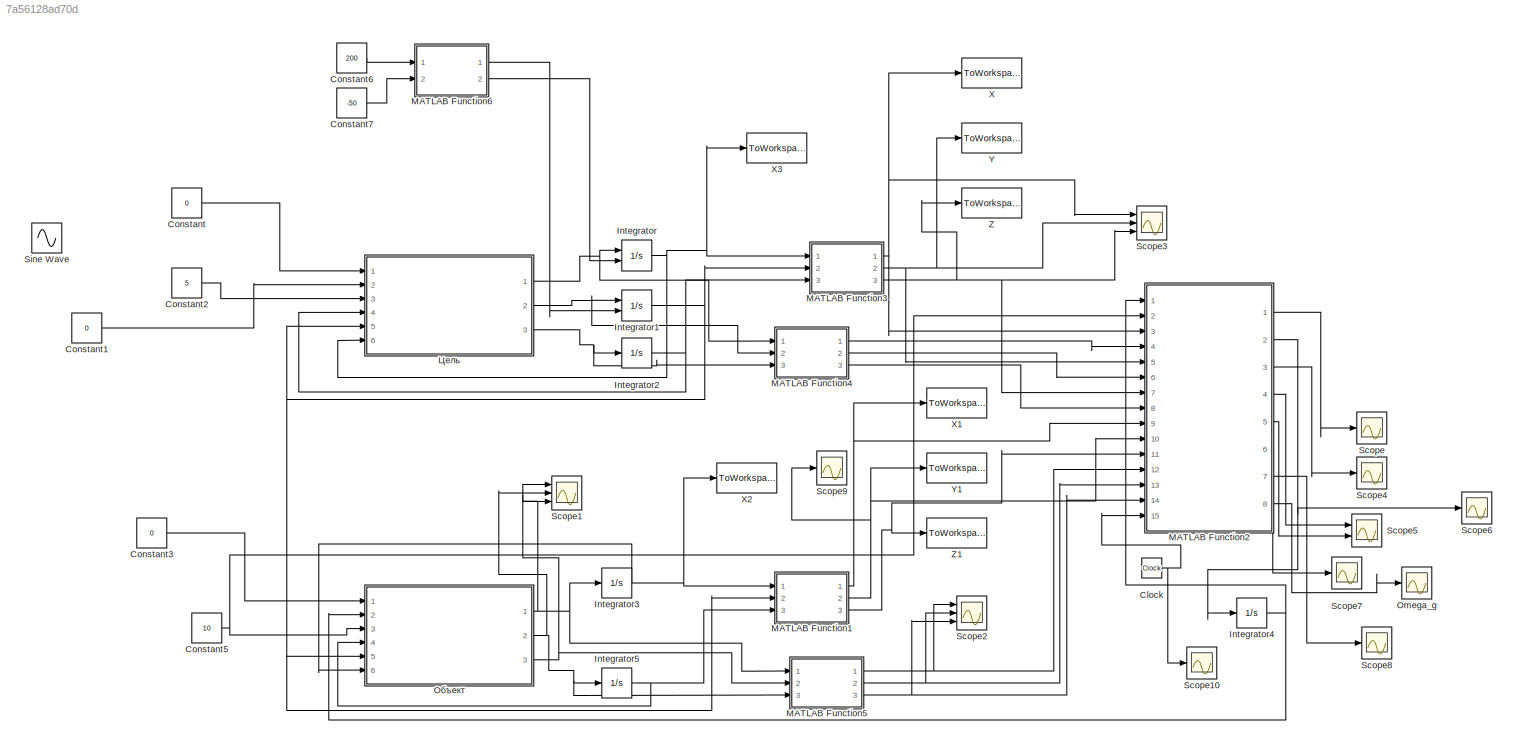
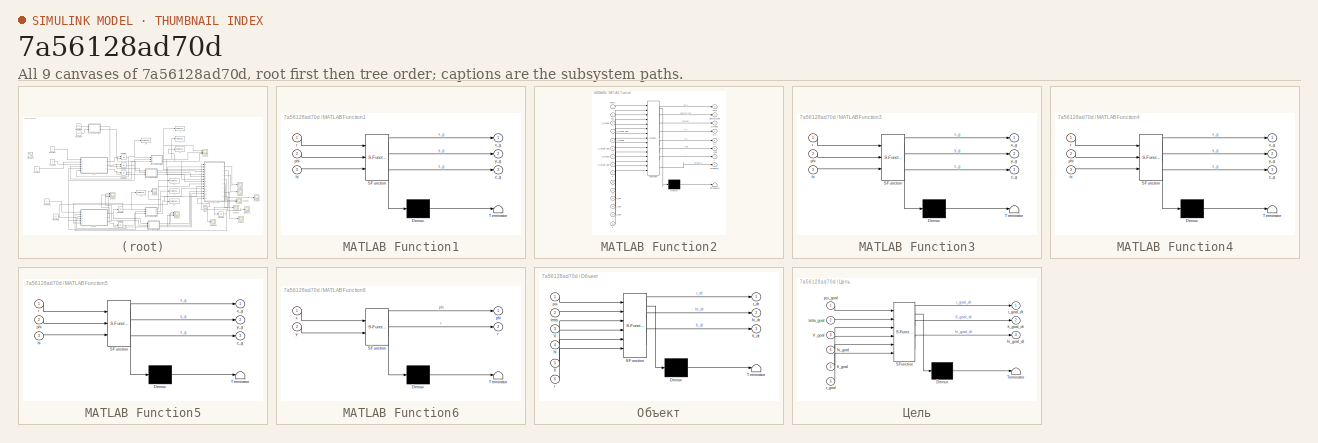
[diagram: thumbnail index - all 9 canvases of the model, root first then tree order]
MODEL slx_7a56128ad70d
KIND model
CONFIG AbsTol = auto
CONFIG EnableMultiTasking = off
CONFIG FixedStep = 0.001
CONFIG MaxStep = auto
CONFIG MinStep = auto
CONFIG RelTol = 1e-3
CONFIG SampleTimeConstraint = Unconstrained
CONFIG Solver = ode4
CONFIG SolverName = ode4
CONFIG StartTime = 0.0
CONFIG StopTime = 120
BLOCK [Clock] Clock
BLOCK [Constant] Constant
  Value = 0
BLOCK [Constant] Constant1
  Value = 0
BLOCK [Constant] Constant2
  Value = 5
BLOCK [Constant] Constant3
  Value = 0
BLOCK [Constant] Constant5
  Value = 10
BLOCK [Constant] Constant6
  Value = 200
BLOCK [Constant] Constant7
  Value = -50
BLOCK [Integrator] Integrator
  InitialCondition = 2000
  InitialConditionSource = external
  Ports = [2, 1]
BLOCK [Integrator] Integrator1
  InitialCondition = pi/4
  InitialConditionSource = external
  Ports = [2, 1]
BLOCK [Integrator] Integrator2
  InitialCondition = 0.0001
  Ports = [1, 1]
BLOCK [Integrator] Integrator3
  InitialCondition = 1
  Ports = [1, 1]
BLOCK [Integrator] Integrator4
  InitialCondition = pi/6
  Ports = [1, 1]
BLOCK [Integrator] Integrator5
  InitialCondition = 0.001
  Ports = [1, 1]
BLOCK [SubSystem] MATLAB Function1
  ErrorFcn = Stateflow.Translate.translate
  PermitHierarchicalResolution = ExplicitOnly
  Ports = [3, 3]
  RequestExecContextInheritance = off
  SFBlockType = MATLAB Function
  TreatAsAtomicUnit = on
BLOCK [Demux] MATLAB Function1/ Demux 
  Outputs = 1
  Ports = [1, 1]
BLOCK [S-Function] MATLAB Function1/ SFunction 
  EnableBusSupport = on
  FunctionName = sf_sfun
  PortCounts = [3 4]
  Ports = [3, 4]
  SFcnIsStateOwnerBlock = off
  SFunctionDeploymentMode = off
  Tag = Stateflow S-Function 1
BLOCK [Terminator] MATLAB Function1/ Terminator 
BLOCK [Inport] MATLAB Function1/hi
  Port = 3
BLOCK [Inport] MATLAB Function1/phi
  Port = 2
BLOCK [Inport] MATLAB Function1/r
BLOCK [Outport] MATLAB Function1/x_g
BLOCK [Outport] MATLAB Function1/y_g
  Port = 2
BLOCK [Outport] MATLAB Function1/z_g
  Port = 3
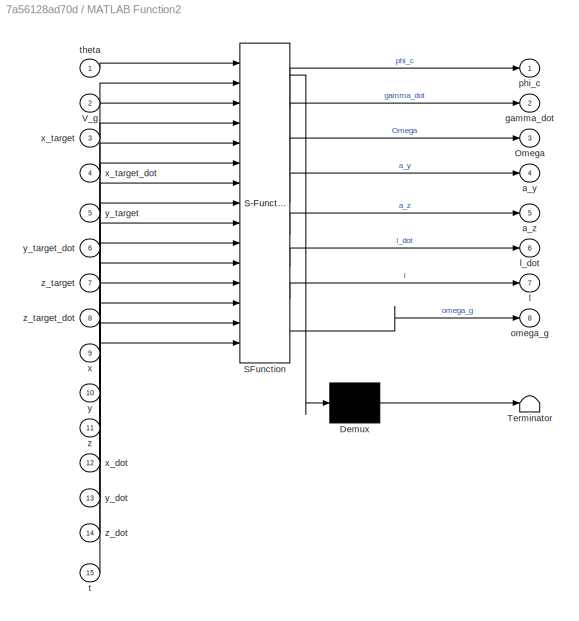
BLOCK [SubSystem] MATLAB Function2
  ErrorFcn = Stateflow.Translate.translate
  PermitHierarchicalResolution = ExplicitOnly
  Ports = [15, 8]
  RequestExecContextInheritance = off
  SFBlockType = MATLAB Function
  TreatAsAtomicUnit = on
BLOCK [Demux] MATLAB Function2/ Demux 
  Outputs = 1
  Ports = [1, 1]
BLOCK [S-Function] MATLAB Function2/ SFunction 
  EnableBusSupport = on
  FunctionName = sf_sfun
  PortCounts = [15 9]
  Ports = [15, 9]
  SFcnIsStateOwnerBlock = off
  SFunctionDeploymentMode = off
  Tag = Stateflow S-Function 6
BLOCK [Terminator] MATLAB Function2/ Terminator 
BLOCK [Outport] MATLAB Function2/Omega
  Port = 3
BLOCK [Inport] MATLAB Function2/V_g
  Port = 2
BLOCK [Outport] MATLAB Function2/a_y
  Port = 4
BLOCK [Outport] MATLAB Function2/a_z
  Port = 5
BLOCK [Outport] MATLAB Function2/gamma_dot
  Port = 2
BLOCK [Outport] MATLAB Function2/l
  Port = 7
BLOCK [Outport] MATLAB Function2/l_dot
  Port = 6
BLOCK [Outport] MATLAB Function2/omega_g
  Port = 8
BLOCK [Outport] MATLAB Function2/phi_c
BLOCK [Inport] MATLAB Function2/t
  Port = 15
BLOCK [Inport] MATLAB Function2/theta
BLOCK [Inport] MATLAB Function2/x
  Port = 9
BLOCK [Inport] MATLAB Function2/x_dot
  Port = 12
BLOCK [Inport] MATLAB Function2/x_target
  Port = 3
BLOCK [Inport] MATLAB Function2/x_target_dot
  Port = 4
BLOCK [Inport] MATLAB Function2/y
  Port = 10
BLOCK [Inport] MATLAB Function2/y_dot
  Port = 13
BLOCK [Inport] MATLAB Function2/y_target
  Port = 5
BLOCK [Inport] MATLAB Function2/y_target_dot
  Port = 6
BLOCK [Inport] MATLAB Function2/z
  Port = 11
BLOCK [Inport] MATLAB Function2/z_dot
  Port = 14
BLOCK [Inport] MATLAB Function2/z_target
  Port = 7
BLOCK [Inport] MATLAB Function2/z_target_dot
  Port = 8
BLOCK [SubSystem] MATLAB Function3
  ErrorFcn = Stateflow.Translate.translate
  PermitHierarchicalResolution = ExplicitOnly
  Ports = [3, 3]
  RequestExecContextInheritance = off
  SFBlockType = MATLAB Function
  TreatAsAtomicUnit = on
BLOCK [Demux] MATLAB Function3/ Demux 
  Outputs = 1
  Ports = [1, 1]
BLOCK [S-Function] MATLAB Function3/ SFunction 
  EnableBusSupport = on
  FunctionName = sf_sfun
  PortCounts = [3 4]
  Ports = [3, 4]
  SFcnIsStateOwnerBlock = off
  SFunctionDeploymentMode = off
  Tag = Stateflow S-Function 4
BLOCK [Terminator] MATLAB Function3/ Terminator 
BLOCK [Inport] MATLAB Function3/hi
  Port = 3
BLOCK [Inport] MATLAB Function3/phi
  Port = 2
BLOCK [Inport] MATLAB Function3/r
BLOCK [Outport] MATLAB Function3/x_g
BLOCK [Outport] MATLAB Function3/y_g
  Port = 2
BLOCK [Outport] MATLAB Function3/z_g
  Port = 3
BLOCK [SubSystem] MATLAB Function4
  ErrorFcn = Stateflow.Translate.translate
  PermitHierarchicalResolution = ExplicitOnly
  Ports = [3, 3]
  RequestExecContextInheritance = off
  SFBlockType = MATLAB Function
  TreatAsAtomicUnit = on
BLOCK [Demux] MATLAB Function4/ Demux 
  Outputs = 1
  Ports = [1, 1]
BLOCK [S-Function] MATLAB Function4/ SFunction 
  EnableBusSupport = on
  FunctionName = sf_sfun
  PortCounts = [3 4]
  Ports = [3, 4]
  SFcnIsStateOwnerBlock = off
  SFunctionDeploymentMode = off
  Tag = Stateflow S-Function 7
BLOCK [Terminator] MATLAB Function4/ Terminator 
BLOCK [Inport] MATLAB Function4/hi
  Port = 3
BLOCK [Inport] MATLAB Function4/phi
  Port = 2
BLOCK [Inport] MATLAB Function4/r
BLOCK [Outport] MATLAB Function4/x_g
BLOCK [Outport] MATLAB Function4/y_g
  Port = 2
BLOCK [Outport] MATLAB Function4/z_g
  Port = 3
BLOCK [SubSystem] MATLAB Function5
  ErrorFcn = Stateflow.Translate.translate
  PermitHierarchicalResolution = ExplicitOnly
  Ports = [3, 3]
  RequestExecContextInheritance = off
  SFBlockType = MATLAB Function
  TreatAsAtomicUnit = on
BLOCK [Demux] MATLAB Function5/ Demux 
  Outputs = 1
  Ports = [1, 1]
BLOCK [S-Function] MATLAB Function5/ SFunction 
  EnableBusSupport = on
  FunctionName = sf_sfun
  PortCounts = [3 4]
  Ports = [3, 4]
  SFcnIsStateOwnerBlock = off
  SFunctionDeploymentMode = off
  Tag = Stateflow S-Function 8
BLOCK [Terminator] MATLAB Function5/ Terminator 
BLOCK [Inport] MATLAB Function5/hi
  Port = 3
BLOCK [Inport] MATLAB Function5/phi
  Port = 2
BLOCK [Inport] MATLAB Function5/r
BLOCK [Outport] MATLAB Function5/x_g
BLOCK [Outport] MATLAB Function5/y_g
  Port = 2
BLOCK [Outport] MATLAB Function5/z_g
  Port = 3
BLOCK [SubSystem] MATLAB Function6
  ErrorFcn = Stateflow.Translate.translate
  PermitHierarchicalResolution = ExplicitOnly
  Ports = [2, 2]
  RequestExecContextInheritance = off
  SFBlockType = MATLAB Function
  TreatAsAtomicUnit = on
BLOCK [Demux] MATLAB Function6/ Demux 
  Outputs = 1
  Ports = [1, 1]
BLOCK [S-Function] MATLAB Function6/ SFunction 
  EnableBusSupport = on
  FunctionName = sf_sfun
  PortCounts = [2 3]
  Ports = [2, 3]
  SFcnIsStateOwnerBlock = off
  SFunctionDeploymentMode = off
  Tag = Stateflow S-Function 5
BLOCK [Terminator] MATLAB Function6/ Terminator 
BLOCK [Outport] MATLAB Function6/phi
BLOCK [Outport] MATLAB Function6/r
  Port = 2
BLOCK [Inport] MATLAB Function6/x
BLOCK [Inport] MATLAB Function6/y
  Port = 2
BLOCK [Scope] Omega_g
  Floating = off
  NumInputPorts = 1
  Ports = [1]
  ScopeSpecificationString = Simulink.scopes.TimeScopeBlockCfg('CurrentConfiguration', extmgr.ConfigurationSet(extmgr.Configuration('Core','General UI',true),extmgr.Configuration('Core','Source UI',true),extmgr.Configuration('Sources','WiredSimulink',true,'DataLoggingVariableName','ScopeData2'),extmgr.Configuration('Visuals','Time Domain',true,'SerializedDisplays',{struct('MinYLimReal','-0.00155','MaxYLimReal','0.00178','YLab...<+1488ch>
BLOCK [Scope] Scope
  Floating = off
  NumInputPorts = 1
  Ports = [1]
  ScopeSpecificationString = Simulink.scopes.TimeScopeBlockCfg('CurrentConfiguration', extmgr.ConfigurationSet(extmgr.Configuration('Core','General UI',true),extmgr.Configuration('Core','Source UI',true),extmgr.Configuration('Sources','WiredSimulink',true),extmgr.Configuration('Visuals','Time Domain',true,'SerializedDisplays',{struct('MinYLimReal','-0.125','MaxYLimReal','1.125','YLabelReal','','MinYLimMag','0.00000','MaxYLimM...<+1360ch>
BLOCK [Scope] Scope1
  Floating = off
  NumInputPorts = 3
  Ports = [3]
  ScopeSpecificationString = Simulink.scopes.TimeScopeBlockCfg('CurrentConfiguration', extmgr.ConfigurationSet(extmgr.Configuration('Core','General UI',true),extmgr.Configuration('Core','Source UI',true),extmgr.Configuration('Sources','WiredSimulink',true,'DataLoggingVariableName','ScopeData7'),extmgr.Configuration('Visuals','Time Domain',true,'SerializedDisplays',{struct('MinYLimReal','-123.57353','MaxYLimReal','335.70557','...<+1459ch>
BLOCK [Scope] Scope10
  Floating = off
  NumInputPorts = 1
  Ports = [1]
  ScopeSpecificationString = Simulink.scopes.TimeScopeBlockCfg('CurrentConfiguration', extmgr.ConfigurationSet(extmgr.Configuration('Core','General UI',true),extmgr.Configuration('Core','Source UI',true),extmgr.Configuration('Sources','WiredSimulink',true,'DataLoggingVariableName','ScopeData1'),extmgr.Configuration('Visuals','Time Domain',true,'SerializedDisplays',{struct('MinYLimReal','-0.0318','MaxYLimReal','0.44768','YLabe...<+1407ch>
BLOCK [Scope] Scope2
  Floating = off
  NumInputPorts = 3
  Ports = [3]
  ScopeSpecificationString = Simulink.scopes.TimeScopeBlockCfg('CurrentConfiguration', extmgr.ConfigurationSet(extmgr.Configuration('Core','General UI',true),extmgr.Configuration('Core','Source UI',true),extmgr.Configuration('Sources','WiredSimulink',true,'DataLoggingVariableName','ScopeData8'),extmgr.Configuration('Visuals','Time Domain',true,'SerializedDisplays',{struct('MinYLimReal','-1.50931','MaxYLimReal','1.77948','YLab...<+1470ch>
BLOCK [Scope] Scope3
  Floating = off
  NumInputPorts = 3
  Ports = [3]
  ScopeSpecificationString = Simulink.scopes.TimeScopeBlockCfg('CurrentConfiguration', extmgr.ConfigurationSet(extmgr.Configuration('Core','General UI',true),extmgr.Configuration('Core','Source UI',true),extmgr.Configuration('Sources','WiredSimulink',true,'DataLoggingVariableName','ScopeData1'),extmgr.Configuration('Visuals','Time Domain',true,'SerializedDisplays',{struct('MinYLimReal','-84.375','MaxYLimReal','259.375','YLabe...<+1452ch>
BLOCK [Scope] Scope4
  Floating = off
  NumInputPorts = 1
  Ports = [1]
  ScopeSpecificationString = Simulink.scopes.TimeScopeBlockCfg('CurrentConfiguration', extmgr.ConfigurationSet(extmgr.Configuration('Core','General UI',true),extmgr.Configuration('Core','Source UI',true),extmgr.Configuration('Sources','WiredSimulink',true,'DataLoggingVariableName','ScopeData2'),extmgr.Configuration('Visuals','Time Domain',true,'SerializedDisplays',{struct('MinYLimReal','-0.00155','MaxYLimReal','0.00178','YLab...<+1482ch>
BLOCK [Scope] Scope5
  Floating = off
  NumInputPorts = 2
  Ports = [2]
  ScopeSpecificationString = Simulink.scopes.TimeScopeBlockCfg('CurrentConfiguration', extmgr.ConfigurationSet(extmgr.Configuration('Core','General UI',true),extmgr.Configuration('Core','Source UI',true),extmgr.Configuration('Sources','WiredSimulink',true,'DataLoggingVariableName','ScopeData3'),extmgr.Configuration('Visuals','Time Domain',true,'SerializedDisplays',{struct('MinYLimReal','-2.34306','MaxYLimReal','1.53597','YLab...<+1447ch>
BLOCK [Scope] Scope6
  Floating = off
  NumInputPorts = 1
  Ports = [1]
  ScopeSpecificationString = Simulink.scopes.TimeScopeBlockCfg('CurrentConfiguration', extmgr.ConfigurationSet(extmgr.Configuration('Core','General UI',true),extmgr.Configuration('Core','Source UI',true),extmgr.Configuration('Sources','WiredSimulink',true,'DataLoggingVariableName','ScopeData4'),extmgr.Configuration('Visuals','Time Domain',true,'SerializedDisplays',{struct('MinYLimReal','-1.12804','MaxYLimReal','2.55375','YLab...<+1430ch>
BLOCK [Scope] Scope7
  Floating = off
  NumInputPorts = 1
  Ports = [1]
  ScopeSpecificationString = Simulink.scopes.TimeScopeBlockCfg('CurrentConfiguration', extmgr.ConfigurationSet(extmgr.Configuration('Core','General UI',true),extmgr.Configuration('Core','Source UI',true),extmgr.Configuration('Sources','WiredSimulink',true,'DataLoggingVariableName','ScopeData5'),extmgr.Configuration('Visuals','Time Domain',true,'SerializedDisplays',{struct('MinYLimReal','-4.94252','MaxYLimReal','0.54917','YLab...<+1463ch>
BLOCK [Scope] Scope8
  Floating = off
  NumInputPorts = 1
  Ports = [1]
  ScopeSpecificationString = Simulink.scopes.TimeScopeBlockCfg('CurrentConfiguration', extmgr.ConfigurationSet(extmgr.Configuration('Core','General UI',true),extmgr.Configuration('Core','Source UI',true),extmgr.Configuration('Sources','WiredSimulink',true,'DataLoggingVariableName','ScopeData6'),extmgr.Configuration('Visuals','Time Domain',true,'SerializedDisplays',{struct('MinYLimReal','-76.59274','MaxYLimReal','225.13624','Y...<+1461ch>
BLOCK [Scope] Scope9
  Floating = off
  NumInputPorts = 3
  Ports = [3]
  ScopeSpecificationString = Simulink.scopes.TimeScopeBlockCfg('CurrentConfiguration', extmgr.ConfigurationSet(extmgr.Configuration('Core','General UI',true),extmgr.Configuration('Core','Source UI',true),extmgr.Configuration('Sources','WiredSimulink',true,'DataLoggingVariableName','ScopeData1'),extmgr.Configuration('Visuals','Time Domain',true,'SerializedDisplays',{struct('MinYLimReal','-91.24848','MaxYLimReal','27.57632','YL...<+1454ch>
BLOCK [Sin] Sine Wave
  Amplitude = 0.8
  Frequency = 0.5
  Phase = pi/2
  Ports = [0, 1]
  SampleTime = 0
BLOCK [ToWorkspace] X
  FixptAsFi = on
  MaxDataPoints = inf
  Ports = [1]
  SampleTime = -1
  SaveFormat = Timeseries
  VariableName = X_goal
BLOCK [ToWorkspace] X1
  FixptAsFi = on
  MaxDataPoints = inf
  Ports = [1]
  SampleTime = -1
  SaveFormat = Timeseries
  VariableName = X
BLOCK [ToWorkspace] X2
  FixptAsFi = on
  MaxDataPoints = inf
  Ports = [1]
  SampleTime = -1
  SaveFormat = Timeseries
  VariableName = r
BLOCK [ToWorkspace] X3
  FixptAsFi = on
  MaxDataPoints = inf
  Ports = [1]
  SampleTime = -1
  SaveFormat = Timeseries
  VariableName = r_goal
BLOCK [ToWorkspace] Y
  FixptAsFi = on
  MaxDataPoints = inf
  Ports = [1]
  SampleTime = -1
  SaveFormat = Timeseries
  VariableName = Y_goal
BLOCK [ToWorkspace] Y1
  FixptAsFi = on
  MaxDataPoints = inf
  Ports = [1]
  SampleTime = -1
  SaveFormat = Timeseries
  VariableName = Y
BLOCK [ToWorkspace] Z
  FixptAsFi = on
  MaxDataPoints = inf
  Ports = [1]
  SampleTime = -1
  SaveFormat = Timeseries
  VariableName = Z_goal
BLOCK [ToWorkspace] Z1
  FixptAsFi = on
  MaxDataPoints = inf
  Ports = [1]
  SampleTime = -1
  SaveFormat = Timeseries
  VariableName = Z
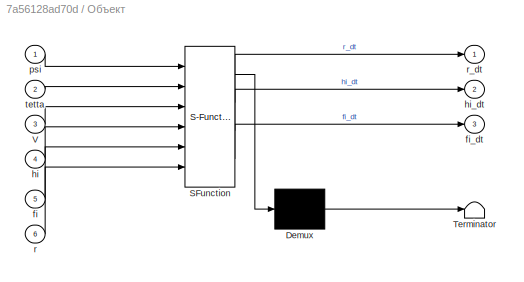
BLOCK [SubSystem] Объект
  ErrorFcn = Stateflow.Translate.translate
  PermitHierarchicalResolution = ExplicitOnly
  Ports = [6, 3]
  RequestExecContextInheritance = off
  SFBlockType = MATLAB Function
  TreatAsAtomicUnit = on
BLOCK [Demux] Объект/ Demux 
  Outputs = 1
  Ports = [1, 1]
BLOCK [S-Function] Объект/ SFunction 
  EnableBusSupport = on
  FunctionName = sf_sfun
  PortCounts = [6 4]
  Ports = [6, 4]
  SFcnIsStateOwnerBlock = off
  SFunctionDeploymentMode = off
  Tag = Stateflow S-Function 3
BLOCK [Terminator] Объект/ Terminator 
BLOCK [Inport] Объект/V
  Port = 3
BLOCK [Inport] Объект/fi
  Port = 5
BLOCK [Outport] Объект/fi_dt
  Port = 3
BLOCK [Inport] Объект/hi
  Port = 4
BLOCK [Outport] Объект/hi_dt
  Port = 2
BLOCK [Inport] Объект/psi
BLOCK [Inport] Объект/r
  Port = 6
BLOCK [Outport] Объект/r_dt
BLOCK [Inport] Объект/tetta
  Port = 2
BLOCK [SubSystem] Цель
  ErrorFcn = Stateflow.Translate.translate
  PermitHierarchicalResolution = ExplicitOnly
  Ports = [6, 3]
  RequestExecContextInheritance = off
  SFBlockType = MATLAB Function
  TreatAsAtomicUnit = on
BLOCK [Demux] Цель/ Demux 
  Outputs = 1
  Ports = [1, 1]
BLOCK [S-Function] Цель/ SFunction 
  EnableBusSupport = on
  FunctionName = sf_sfun
  PortCounts = [6 4]
  Ports = [6, 4]
  SFcnIsStateOwnerBlock = off
  SFunctionDeploymentMode = off
  Tag = Stateflow S-Function 2
BLOCK [Terminator] Цель/ Terminator 
BLOCK [Inport] Цель/V_goal
  Port = 3
BLOCK [Inport] Цель/fi_goal
  Port = 5
BLOCK [Outport] Цель/fi_goal_dt
  Port = 2
BLOCK [Inport] Цель/hi_goal
  Port = 4
BLOCK [Outport] Цель/hi_goal_dt
  Port = 3
BLOCK [Inport] Цель/psi_goal
BLOCK [Inport] Цель/r_goal
  Port = 6
BLOCK [Outport] Цель/r_goal_dt
BLOCK [Inport] Цель/tetta_goal
  Port = 2
NET Clock:1 -> MATLAB Function2:15, Scope10:1
LINE Constant1:1 -> Цель:2
LINE Constant2:1 -> Цель:3
LINE Constant3:1 -> Объект:1
NET Constant5:1 -> MATLAB Function2:2, Объект:3
LINE Constant6:1 -> MATLAB Function6:1
LINE Constant7:1 -> MATLAB Function6:2
LINE Constant:1 -> Цель:1
NET Integrator1:1 -> MATLAB Function1:2, MATLAB Function3:2, Объект:5, Цель:5
NET Integrator2:1 -> MATLAB Function3:3, Цель:4
NET Integrator3:1 -> MATLAB Function1:1, X2:1, Объект:6
NET Integrator4:1 -> MATLAB Function2:1, Объект:2
NET Integrator5:1 -> MATLAB Function1:3, Объект:4
NET Integrator:1 -> MATLAB Function3:1, X3:1, Цель:6
NET MATLAB Function1:1 -> MATLAB Function2:9, X1:1
NET MATLAB Function1:2 -> MATLAB Function2:10, Scope9:2, Y1:1
NET MATLAB Function1:3 -> MATLAB Function2:11, Z1:1
LINE MATLAB Function2:1 -> Scope:1
NET MATLAB Function2:2 -> Integrator4:1, Scope6:1
LINE MATLAB Function2:3 -> Scope4:1
LINE MATLAB Function2:4 -> Scope5:1
LINE MATLAB Function2:5 -> Scope5:2
LINE MATLAB Function2:6 -> Scope7:1
LINE MATLAB Function2:7 -> Scope8:1
LINE MATLAB Function2:8 -> Omega_g:1
NET MATLAB Function3:1 -> MATLAB Function2:3, Scope3:1, X:1
NET MATLAB Function3:2 -> MATLAB Function2:5, Scope3:2, Y:1
NET MATLAB Function3:3 -> MATLAB Function2:7, Scope3:3, Z:1
LINE MATLAB Function4:1 -> MATLAB Function2:4
LINE MATLAB Function4:2 -> MATLAB Function2:6
LINE MATLAB Function4:3 -> MATLAB Function2:8
NET MATLAB Function5:1 -> MATLAB Function2:12, Scope2:1
NET MATLAB Function5:2 -> MATLAB Function2:13, Scope2:2
NET MATLAB Function5:3 -> MATLAB Function2:14, Scope2:3
LINE MATLAB Function6:1 -> Integrator1:2
LINE MATLAB Function6:2 -> Integrator:2
NET Объект:1 -> Integrator3:1, MATLAB Function5:1, Scope1:1
NET Объект:2 -> Integrator5:1, MATLAB Function5:3, Scope1:2
NET Объект:3 -> MATLAB Function5:2, Scope1:3
NET Цель:1 -> Integrator:1, MATLAB Function4:1
NET Цель:2 -> Integrator1:1, MATLAB Function4:2
NET Цель:3 -> Integrator2:1, MATLAB Function4:3
note: NET lines group one-source signal fan-out (src -> all destinations, sorted); 1:1 wires keep LINE
CHART MATLAB Function4 states=1 transitions=1
  STATE_LABEL 'eML_blk_kernel()'
  STATE_LABEL 'SCRIPT:\nfunction [x_g, y_g, z_g] = fcn(r, phi, hi)\n    x_g = r* cos(phi)*cos(hi);\n    y_g = r*sin(phi);\n    z_g = -r*cos(phi)*sin(hi);\nend\n'
CHART MATLAB Function5 states=1 transitions=1
  STATE_LABEL 'eML_blk_kernel()'
  STATE_LABEL 'SCRIPT:\nfunction [x_g, y_g, z_g] = fcn(r, phi, hi)\n    x_g = r* cos(phi)*cos(hi);\n    y_g = r*sin(phi);\n    z_g = -r*cos(phi)*sin(hi);\nend\n'
CHART MATLAB Function1 states=1 transitions=1
  STATE_LABEL 'eML_blk_kernel()'
  STATE_LABEL 'SCRIPT:\nfunction [x_g, y_g, z_g] = fcn(r, phi, hi)\n    x_g = r* cos(phi)*cos(hi);\n    y_g = r*sin(phi);\n    z_g = -r*cos(phi)*sin(hi);\nend\n'
CHART Цель states=1 transitions=1
  STATE_LABEL 'eML_blk_kernel()'
  STATE_LABEL 'SCRIPT:\nfunction [r_goal_dt, fi_goal_dt, hi_goal_dt] = fcn(psi_goal,tetta_goal,V_goal,hi_goal,fi_goal,r_goal)\n\nr_goal_dt = V_goal*cos(tetta_goal)*cos(psi_goal-hi_goal)*cos(fi_goal)+V_goal*sin(tetta_goal)*sin(fi_goal);\nfi_goal_dt = (-V_goal*cos(tetta_goal)*cos(psi_goal-hi_goal)*sin(fi_goal)+V_goal*sin(tetta_goal)*cos(fi_goal))/r_goal;\nhi_goal_dt = (V_goal*cos(tetta_goal)*sin(psi_goal-hi_goal))/r_go...<+22ch>'
CHART Объект states=1 transitions=1
  STATE_LABEL 'eML_blk_kernel()'
  STATE_LABEL 'SCRIPT:\nfunction [r_dt, hi_dt, fi_dt] = fcn(psi,tetta,V,hi,fi,r)\n\nr_dt = V*cos(tetta)*cos(psi-hi)*cos(fi)+V*sin(tetta)*sin(fi);\nfi_dt = (-V*cos(tetta)*cos(psi-hi)*sin(fi)+V*sin(tetta)*cos(fi))/r;\n%hi_dt = (V*cos(tetta)*sin(psi-hi))/r/cos(fi);\nhi_dt = (V*cos(tetta)*sin(psi-hi))/r/cos(fi);\n\nend\n'
CHART MATLAB Function3 states=1 transitions=1
  STATE_LABEL 'eML_blk_kernel()'
  STATE_LABEL 'SCRIPT:\nfunction [x_g, y_g, z_g] = fcn(r, phi, hi)\n    x_g = r* cos(phi)*cos(hi);\n    y_g = r*sin(phi);\n    z_g = -r*cos(phi)*sin(hi);\nend\n'
CHART MATLAB Function6 states=1 transitions=1
  STATE_LABEL 'eML_blk_kernel()'
  STATE_LABEL 'SCRIPT:\nfunction [phi, r] = fcn(x, y)\n    phi = atan2(y, x);\n    r = y/sin(phi);\nend\n'
CHART MATLAB Function2 states=1 transitions=1
  STATE_LABEL 'eML_blk_kernel()'
  STATE_LABEL "SCRIPT:\nfunction [phi_c, gamma_dot, Omega, a_y, a_z, l_dot, l, omega_g] = Naved(theta, V_g, x_target, x_target_dot, y_target, y_target_dot, z_target, z_target_dot, x, y, z, x_dot, y_dot, z_dot, t)\n    delay = 2;\n    if t < delay\n        gamma_dot = 0;\n        phi_c = 0; Omega = [0 0 0]'; a_y = 0; a_z = 0; l_dot = [0 0 0]'; l = [0 0 0]';\n        omega_g = zeros(3,1);\n    else\n    \n        mu = 1;\n ...<+808ch>"
CHART  states=0 transitions=0
CHART  states=0 transitions=0
CHART  states=0 transitions=0
CHART  states=0 transitions=0
CHART  states=0 transitions=0
CHART  states=0 transitions=0
CHART  states=0 transitions=0
CHART  states=0 transitions=0
